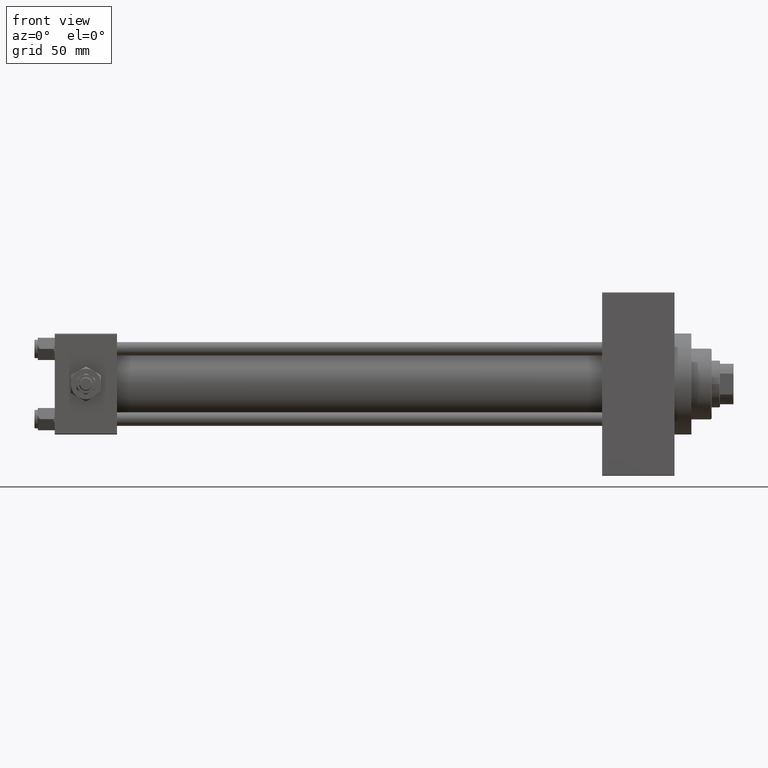
[diagram: clean part render]
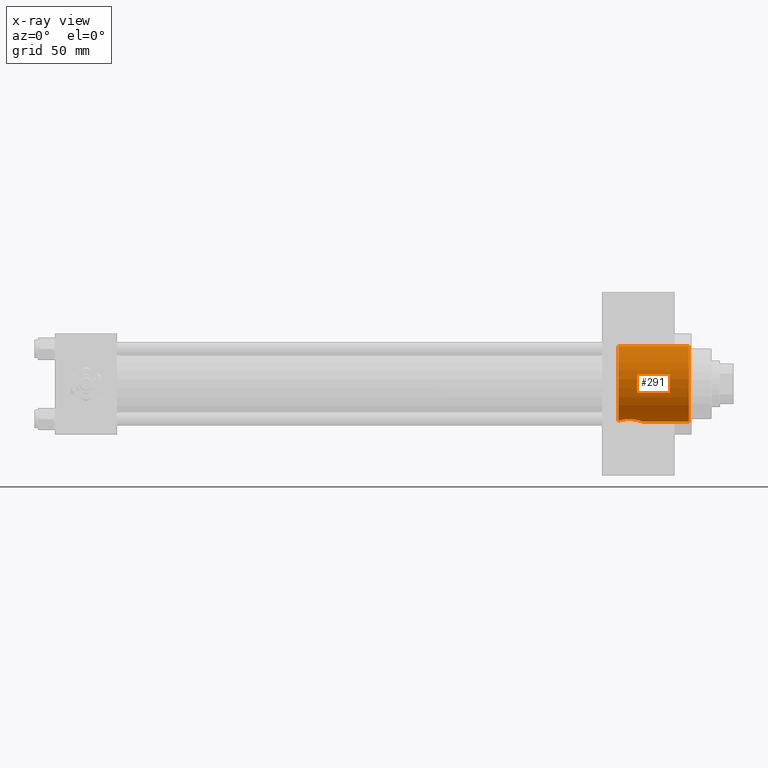
[diagram: x-ray — body ghosted, one internal face saturated and labeled with its STEP entity id]
A machine part, front view, then the same camera in x-ray: the body is ghosted and one INTERNAL B-rep face — a face not visible from any outside direction — is saturated and labeled: STEP entity #291.
In plain terms, the highlighted cylindrical surface (partial cylindrical patch) has radius 22.5 mm, axis along (1, 0, 0).
Its self-contained STEP definition (entity closure, byte-faithful):
#291 = ADVANCED_FACE ( 'NONE', ( #38933 ), #11301, .F. ) ;
#2043 = CARTESIAN_POINT ( 'NONE',  ( 346.4597915280917277, -6.305104980880392951, -21.60018777995133021 ) ) ;
#2565 = EDGE_CURVE ( 'NONE', #9866, #7521, #20307, .T. ) ;
#3825 = CARTESIAN_POINT ( 'NONE',  ( 334.7399999999999523, 0.000000000000000000, 0.000000000000000000 ) ) ;
#4817 = DIRECTION ( 'NONE',  ( 0.000000000000000000, 0.000000000000000000, -1.000000000000000000 ) ) ;
#5291 = CARTESIAN_POINT ( 'NONE',  ( 341.2794540716095639, -8.328024065339581838, -20.90201419577499564 ) ) ;
#5542 = CARTESIAN_POINT ( 'NONE',  ( 337.0116854358693672, -7.325101535721532997, -21.27547271216654678 ) ) ;
#5653 = EDGE_CURVE ( 'NONE', #47644, #32685, #27502, .T. ) ;
#5786 = CARTESIAN_POINT ( 'NONE',  ( 345.4717217021022861, -7.077548616542929771, -21.36464718587222222 ) ) ;
#5813 = EDGE_LOOP ( 'NONE', ( #5842, #42478, #40903, #32963, #7327 ) ) ;
#5842 = ORIENTED_EDGE ( 'NONE', *, *, #5653, .F. ) ;
#6012 = AXIS2_PLACEMENT_3D ( 'NONE', #20317, #47450, #24805 ) ;
#6026 = CARTESIAN_POINT ( 'NONE',  ( 349.1699291769579645, -1.679278209817700374, -22.44115179447787511 ) ) ;
#7327 = ORIENTED_EDGE ( 'NONE', *, *, #26988, .T. ) ;
#7521 = VERTEX_POINT ( 'NONE', #20393 ) ;
#9027 = CARTESIAN_POINT ( 'NONE',  ( 346.7709310324998455, -6.021442665975518693, -21.68155238348413505 ) ) ;
#9866 = VERTEX_POINT ( 'NONE', #44407 ) ;
#11189 = CARTESIAN_POINT ( 'NONE',  ( 334.7399999999999523, 2.755455298081545172E-15, 22.50000000000000355 ) ) ;
#11301 = CYLINDRICAL_SURFACE ( 'NONE', #30585, 22.50000000000000355 ) ;
#12771 = CARTESIAN_POINT ( 'NONE',  ( 347.6031555897930616, -5.095277354536547065, -21.91828998158685593 ) ) ;
#13006 = CARTESIAN_POINT ( 'NONE',  ( 338.5613052431536403, -7.976241308370991767, -21.03905286955200538 ) ) ;
#13410 = VERTEX_POINT ( 'NONE', #36993 ) ;
#13503 = CARTESIAN_POINT ( 'NONE',  ( 344.7487363894114765, -7.487015359358492717, -21.22021487626639669 ) ) ;
#14970 = B_SPLINE_CURVE_WITH_KNOTS ( 'NONE', 3,
 ( #20245, #35439, #46894, #6026, #39665, #24487, #16987, #20986, #47853, #12771, #43157, #9027, #2043, #5786, #13503, #27964, #24968, #5291, #24236, #36169, #17235, #40145, #28699, #13006, #21228, #39417, #5542, #32446, #47617, #20493, #36412, #35687 ),
 .UNSPECIFIED., .F., .F.,
 ( 4, 2, 2, 2, 2, 2, 2, 2, 2, 2, 2, 2, 2, 2, 2, 4 ),
 ( 0.02026158208243490286, 0.02152696880141145158, 0.02279235552038800378, 0.02405774223936455250, 0.02532312895834110122, 0.02658851567731764995, 0.02785390239629419867, 0.03038467583424730306, 0.03291544927220040051, 0.03354814263168863497, 0.03418083599117686944, 0.03544622271015333836, 0.03671160942912980729, 0.03797699614810627622, 0.03924238286708274515, 0.04050776958605921407 ),
 .UNSPECIFIED. ) ;
#16312 = DIRECTION ( 'NONE',  ( 1.000000000000000000, -0.000000000000000000, -0.000000000000000000 ) ) ;
#16987 = CARTESIAN_POINT ( 'NONE',  ( 348.6639140372365659, -3.290714903397398139, -22.26132373405803477 ) ) ;
#17235 = CARTESIAN_POINT ( 'NONE',  ( 340.4273342078094515, -8.312974207010759287, -20.90801079915065586 ) ) ;
#17867 = EDGE_CURVE ( 'NONE', #47644, #13410, #29622, .T. ) ;
#17922 = VECTOR ( 'NONE', #16312, 1000.000000000000000 ) ;
#19261 = DIRECTION ( 'NONE',  ( 1.000000000000000000, -0.000000000000000000, -0.000000000000000000 ) ) ;
#20055 = EDGE_CURVE ( 'NONE', #13410, #7521, #36622, .T. ) ;
#20245 = CARTESIAN_POINT ( 'NONE',  ( 349.3299999999999841, -1.030804544852296126E-23, -22.50000000000000355 ) ) ;
#20307 = LINE ( 'NONE', #28759, #17922 ) ;
#20317 = CARTESIAN_POINT ( 'NONE',  ( 334.7399999999999523, 0.000000000000000000, 0.000000000000000000 ) ) ;
#20393 = CARTESIAN_POINT ( 'NONE',  ( 376.4999999999999432, 0.000000000000000000, -22.50000000000000355 ) ) ;
#20447 = DIRECTION ( 'NONE',  ( 0.000000000000000000, 0.000000000000000000, -1.000000000000000000 ) ) ;
#20493 = CARTESIAN_POINT ( 'NONE',  ( 335.3158746668532899, -6.103616970294087452, -21.65812902678067431 ) ) ;
#20986 = CARTESIAN_POINT ( 'NONE',  ( 348.2951098973458102, -4.042988316980909325, -22.13706359110741673 ) ) ;
#21228 = CARTESIAN_POINT ( 'NONE',  ( 338.1560306839753025, -7.840697625789160519, -21.09036237300174577 ) ) ;
#23848 = VECTOR ( 'NONE', #37340, 1000.000000000000000 ) ;
#24236 = CARTESIAN_POINT ( 'NONE',  ( 341.0645977083230491, -8.332469890991696104, -20.90023832775081658 ) ) ;
#24487 = CARTESIAN_POINT ( 'NONE',  ( 348.8195974207912400, -2.901808889280268922, -22.31576175661178496 ) ) ;
#24805 = DIRECTION ( 'NONE',  ( 0.000000000000000000, 0.000000000000000000, -1.000000000000000000 ) ) ;
#24968 = CARTESIAN_POINT ( 'NONE',  ( 342.3403738839044763, -8.265299052519083034, -20.92696222447260013 ) ) ;
#26988 = EDGE_CURVE ( 'NONE', #9866, #32685, #14970, .T. ) ;
#27316 = CARTESIAN_POINT ( 'NONE',  ( 334.7399999999999523, 2.755455298081545172E-15, 22.50000000000000355 ) ) ;
#27502 = CIRCLE ( 'NONE', #6012, 22.50000000000000355 ) ;
#27964 = CARTESIAN_POINT ( 'NONE',  ( 343.1626272159215318, -8.088971939222155072, -20.99812971082577562 ) ) ;
#28699 = CARTESIAN_POINT ( 'NONE',  ( 339.3814412075935820, -8.182171164303351674, -20.95982457214782002 ) ) ;
#28759 = CARTESIAN_POINT ( 'NONE',  ( 334.7399999999999523, 0.000000000000000000, -22.50000000000000355 ) ) ;
#29622 = LINE ( 'NONE', #11189, #23848 ) ;
#29938 = CARTESIAN_POINT ( 'NONE',  ( 334.7399999999999523, -5.495570943951124221, -21.81854028114622324 ) ) ;
#30585 = AXIS2_PLACEMENT_3D ( 'NONE', #3825, #19261, #4817 ) ;
#32446 = CARTESIAN_POINT ( 'NONE',  ( 336.2981393575763036, -6.888851288155037444, -21.42070446004187900 ) ) ;
#32685 = VERTEX_POINT ( 'NONE', #29938 ) ;
#32963 = ORIENTED_EDGE ( 'NONE', *, *, #2565, .F. ) ;
#35439 = CARTESIAN_POINT ( 'NONE',  ( 349.3300000000000978, -0.4228661663087368572, -22.50000000000001421 ) ) ;
#35687 = CARTESIAN_POINT ( 'NONE',  ( 334.7399999999999523, -5.495570943951124221, -21.81854028114622324 ) ) ;
#36169 = CARTESIAN_POINT ( 'NONE',  ( 340.6388607599009219, -8.324890737869443669, -20.90325837862611635 ) ) ;
#36412 = CARTESIAN_POINT ( 'NONE',  ( 335.0173696454153855, -5.811522461638537251, -21.73895961452387482 ) ) ;
#36622 = CIRCLE ( 'NONE', #39793, 22.50000000000000355 ) ;
#36993 = CARTESIAN_POINT ( 'NONE',  ( 376.4999999999999432, 2.755455298081545172E-15, 22.50000000000000355 ) ) ;
#37340 = DIRECTION ( 'NONE',  ( 1.000000000000000000, -0.000000000000000000, -0.000000000000000000 ) ) ;
#38933 = FACE_OUTER_BOUND ( 'NONE', #5813, .T. ) ;
#39417 = CARTESIAN_POINT ( 'NONE',  ( 337.3830852825356033, -7.515492575748689674, -21.20842510955139559 ) ) ;
#39665 = CARTESIAN_POINT ( 'NONE',  ( 349.0725935047803432, -2.097577831626844080, -22.40566635581345167 ) ) ;
#39793 = AXIS2_PLACEMENT_3D ( 'NONE', #42865, #47090, #20447 ) ;
#40145 = CARTESIAN_POINT ( 'NONE',  ( 339.7966742200955537, -8.253438808842137320, -20.93161653585324800 ) ) ;
#40903 = ORIENTED_EDGE ( 'NONE', *, *, #20055, .T. ) ;
#42478 = ORIENTED_EDGE ( 'NONE', *, *, #17867, .T. ) ;
#42865 = CARTESIAN_POINT ( 'NONE',  ( 376.4999999999999432, 0.000000000000000000, 0.000000000000000000 ) ) ;
#43157 = CARTESIAN_POINT ( 'NONE',  ( 347.3413009043435977, -5.417501232309242631, -21.84028767977483909 ) ) ;
#44407 = CARTESIAN_POINT ( 'NONE',  ( 349.3299999999999841, -1.030804544852296126E-23, -22.50000000000000355 ) ) ;
#46894 = CARTESIAN_POINT ( 'NONE',  ( 349.2979863424998257, -0.8432915997223064952, -22.48808859033163188 ) ) ;
#47090 = DIRECTION ( 'NONE',  ( 1.000000000000000000, 0.000000000000000000, 0.000000000000000000 ) ) ;
#47450 = DIRECTION ( 'NONE',  ( 1.000000000000000000, 0.000000000000000000, 0.000000000000000000 ) ) ;
#47617 = CARTESIAN_POINT ( 'NONE',  ( 335.9550632640746812, -6.641689111475748142, -21.49922460944222280 ) ) ;
#47644 = VERTEX_POINT ( 'NONE', #27316 ) ;
#47853 = CARTESIAN_POINT ( 'NONE',  ( 348.0799258618781096, -4.408873422199400594, -22.06660649451127654 ) ) ;